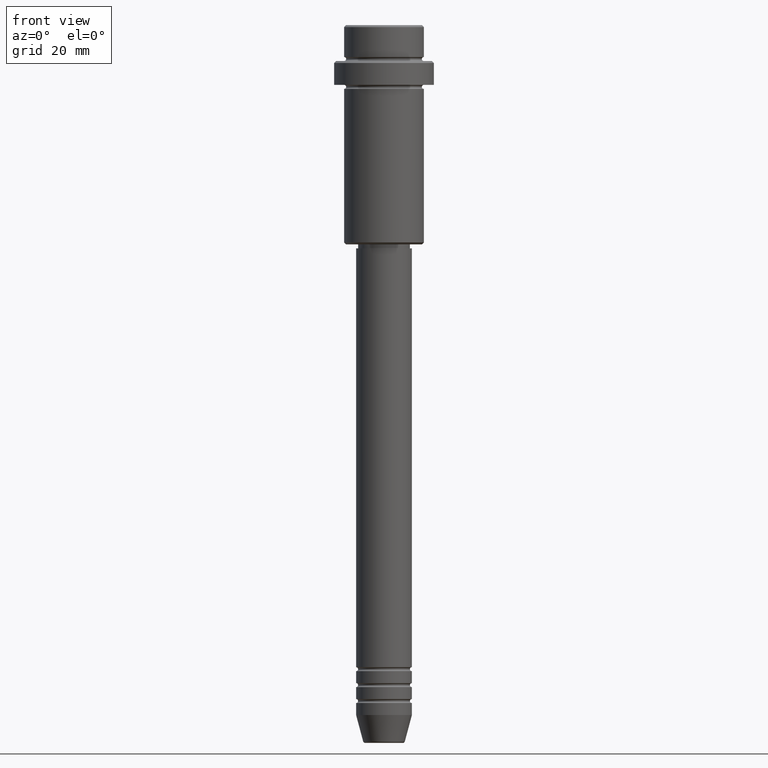
[diagram: clean part render]
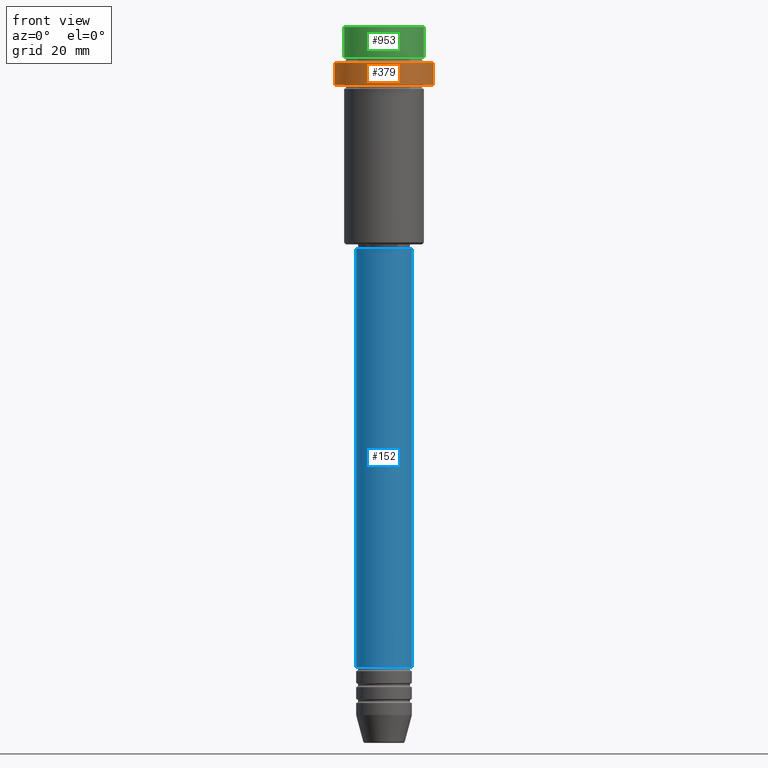
[diagram: same view with three faces highlighted in distinct colors, each labeled with its STEP entity id]
A machine part, front view with three faces highlighted in distinct colors.
Their STEP definitions:

[orange] entity #379 — the highlighted cylindrical surface (partial cylindrical patch) has radius 12.5 mm, axis along (-0, -0, 1).
#19 = ORIENTED_EDGE ( 'NONE', *, *, #631, .T. ) ;
#111 = CARTESIAN_POINT ( 'NONE',  ( 0.000000000000000000, 0.000000000000000000, -15.00000000000000000 ) ) ;
#124 = CIRCLE ( 'NONE', #1288, 12.50000000000000000 ) ;
#171 = CIRCLE ( 'NONE', #465, 12.50000000000000000 ) ;
#180 = DIRECTION ( 'NONE',  ( -0.000000000000000000, -0.000000000000000000, 1.000000000000000000 ) ) ;
#185 = VECTOR ( 'NONE', #728, 1000.000000000000000 ) ;
#215 = EDGE_CURVE ( 'NONE', #1117, #1006, #1261, .T. ) ;
#276 = CARTESIAN_POINT ( 'NONE',  ( -12.50000000000000000, 1.530808498934191521E-15, 0.000000000000000000 ) ) ;
#285 = ORIENTED_EDGE ( 'NONE', *, *, #1049, .T. ) ;
#315 = EDGE_CURVE ( 'NONE', #1117, #476, #171, .T. ) ;
#379 = ADVANCED_FACE ( 'NONE', ( #1224 ), #1134, .T. ) ;
#447 = CARTESIAN_POINT ( 'NONE',  ( 0.000000000000000000, 0.000000000000000000, 0.000000000000000000 ) ) ;
#453 = DIRECTION ( 'NONE',  ( -0.000000000000000000, -0.000000000000000000, 1.000000000000000000 ) ) ;
#465 = AXIS2_PLACEMENT_3D ( 'NONE', #111, #532, #864 ) ;
#473 = DIRECTION ( 'NONE',  ( 1.000000000000000000, 0.000000000000000000, 0.000000000000000000 ) ) ;
#476 = VERTEX_POINT ( 'NONE', #1408 ) ;
#495 = CARTESIAN_POINT ( 'NONE',  ( 12.50000000000000000, 0.000000000000000000, 0.000000000000000000 ) ) ;
#532 = DIRECTION ( 'NONE',  ( -0.000000000000000000, -0.000000000000000000, 1.000000000000000000 ) ) ;
#543 = ORIENTED_EDGE ( 'NONE', *, *, #315, .T. ) ;
#631 = EDGE_CURVE ( 'NONE', #662, #1006, #124, .T. ) ;
#642 = VECTOR ( 'NONE', #180, 1000.000000000000000 ) ;
#662 = VERTEX_POINT ( 'NONE', #999 ) ;
#672 = AXIS2_PLACEMENT_3D ( 'NONE', #447, #453, #473 ) ;
#681 = DIRECTION ( 'NONE',  ( 1.000000000000000000, 0.000000000000000000, 0.000000000000000000 ) ) ;
#728 = DIRECTION ( 'NONE',  ( -0.000000000000000000, -0.000000000000000000, 1.000000000000000000 ) ) ;
#746 = EDGE_LOOP ( 'NONE', ( #954, #543, #285, #19 ) ) ;
#864 = DIRECTION ( 'NONE',  ( 1.000000000000000000, 0.000000000000000000, 0.000000000000000000 ) ) ;
#940 = LINE ( 'NONE', #495, #185 ) ;
#954 = ORIENTED_EDGE ( 'NONE', *, *, #215, .F. ) ;
#994 = CARTESIAN_POINT ( 'NONE',  ( -12.50000000000000000, 1.530808498934191521E-15, -15.00000000000000000 ) ) ;
#999 = CARTESIAN_POINT ( 'NONE',  ( 12.50000000000000000, 0.000000000000000000, -9.500000000000005329 ) ) ;
#1006 = VERTEX_POINT ( 'NONE', #1074 ) ;
#1049 = EDGE_CURVE ( 'NONE', #476, #662, #940, .T. ) ;
#1074 = CARTESIAN_POINT ( 'NONE',  ( -12.50000000000000000, 1.530808498934191521E-15, -9.500000000000005329 ) ) ;
#1117 = VERTEX_POINT ( 'NONE', #994 ) ;
#1134 = CYLINDRICAL_SURFACE ( 'NONE', #672, 12.50000000000000000 ) ;
#1224 = FACE_OUTER_BOUND ( 'NONE', #746, .T. ) ;
#1231 = DIRECTION ( 'NONE',  ( 0.000000000000000000, 0.000000000000000000, -1.000000000000000000 ) ) ;
#1261 = LINE ( 'NONE', #276, #642 ) ;
#1288 = AXIS2_PLACEMENT_3D ( 'NONE', #1348, #1231, #681 ) ;
#1348 = CARTESIAN_POINT ( 'NONE',  ( 0.000000000000000000, 0.000000000000000000, -9.500000000000005329 ) ) ;
#1408 = CARTESIAN_POINT ( 'NONE',  ( 12.50000000000000000, 0.000000000000000000, -15.00000000000000000 ) ) ;

[blue] entity #152 — the highlighted cylindrical surface (edge-blend (fillet) strip) has radius 7 mm, axis along (-0, -0, 1).
#43 = VECTOR ( 'NONE', #807, 1000.000000000000000 ) ;
#108 = EDGE_CURVE ( 'NONE', #161, #904, #1360, .T. ) ;
#152 = ADVANCED_FACE ( 'NONE', ( #594 ), #397, .T. ) ;
#161 = VERTEX_POINT ( 'NONE', #303 ) ;
#169 = VECTOR ( 'NONE', #1187, 1000.000000000000000 ) ;
#289 = DIRECTION ( 'NONE',  ( -0.000000000000000000, -0.000000000000000000, 1.000000000000000000 ) ) ;
#290 = EDGE_CURVE ( 'NONE', #1162, #814, #743, .T. ) ;
#303 = CARTESIAN_POINT ( 'NONE',  ( -7.000000000000000000, 8.572527594031473190E-16, -160.9999999999998579 ) ) ;
#304 = DIRECTION ( 'NONE',  ( -0.000000000000000000, -0.000000000000000000, 1.000000000000000000 ) ) ;
#368 = CARTESIAN_POINT ( 'NONE',  ( -7.000000000000000000, 8.572527594031473190E-16, 0.000000000000000000 ) ) ;
#370 = AXIS2_PLACEMENT_3D ( 'NONE', #1182, #304, #1402 ) ;
#397 = CYLINDRICAL_SURFACE ( 'NONE', #555, 7.000000000000000000 ) ;
#450 = ORIENTED_EDGE ( 'NONE', *, *, #808, .T. ) ;
#548 = CARTESIAN_POINT ( 'NONE',  ( 7.000000000000000000, 0.000000000000000000, -160.9999999999998579 ) ) ;
#555 = AXIS2_PLACEMENT_3D ( 'NONE', #1047, #289, #1384 ) ;
#594 = FACE_OUTER_BOUND ( 'NONE', #1152, .T. ) ;
#624 = CIRCLE ( 'NONE', #930, 7.000000000000000000 ) ;
#726 = ORIENTED_EDGE ( 'NONE', *, *, #290, .T. ) ;
#743 = LINE ( 'NONE', #975, #169 ) ;
#771 = ORIENTED_EDGE ( 'NONE', *, *, #1064, .F. ) ;
#778 = ORIENTED_EDGE ( 'NONE', *, *, #108, .F. ) ;
#807 = DIRECTION ( 'NONE',  ( -0.000000000000000000, -0.000000000000000000, 1.000000000000000000 ) ) ;
#808 = EDGE_CURVE ( 'NONE', #161, #1162, #624, .T. ) ;
#814 = VERTEX_POINT ( 'NONE', #1390 ) ;
#904 = VERTEX_POINT ( 'NONE', #1063 ) ;
#930 = AXIS2_PLACEMENT_3D ( 'NONE', #1171, #1151, #933 ) ;
#933 = DIRECTION ( 'NONE',  ( 1.000000000000000000, 0.000000000000000000, 0.000000000000000000 ) ) ;
#975 = CARTESIAN_POINT ( 'NONE',  ( 7.000000000000000000, 0.000000000000000000, 0.000000000000000000 ) ) ;
#988 = CIRCLE ( 'NONE', #370, 7.000000000000000000 ) ;
#1047 = CARTESIAN_POINT ( 'NONE',  ( 0.000000000000000000, 0.000000000000000000, 0.000000000000000000 ) ) ;
#1063 = CARTESIAN_POINT ( 'NONE',  ( -7.000000000000000000, 8.572527594031473190E-16, -55.99999999999999289 ) ) ;
#1064 = EDGE_CURVE ( 'NONE', #904, #814, #988, .T. ) ;
#1151 = DIRECTION ( 'NONE',  ( -0.000000000000000000, -0.000000000000000000, 1.000000000000000000 ) ) ;
#1152 = EDGE_LOOP ( 'NONE', ( #778, #450, #726, #771 ) ) ;
#1162 = VERTEX_POINT ( 'NONE', #548 ) ;
#1171 = CARTESIAN_POINT ( 'NONE',  ( 0.000000000000000000, 0.000000000000000000, -160.9999999999998579 ) ) ;
#1182 = CARTESIAN_POINT ( 'NONE',  ( 0.000000000000000000, 0.000000000000000000, -55.99999999999999289 ) ) ;
#1187 = DIRECTION ( 'NONE',  ( -0.000000000000000000, -0.000000000000000000, 1.000000000000000000 ) ) ;
#1360 = LINE ( 'NONE', #368, #43 ) ;
#1384 = DIRECTION ( 'NONE',  ( 1.000000000000000000, 0.000000000000000000, 0.000000000000000000 ) ) ;
#1390 = CARTESIAN_POINT ( 'NONE',  ( 7.000000000000000000, 0.000000000000000000, -55.99999999999999289 ) ) ;
#1402 = DIRECTION ( 'NONE',  ( 1.000000000000000000, 0.000000000000000000, 0.000000000000000000 ) ) ;

[green] entity #953 — the highlighted cylindrical surface (partial cylindrical patch) has radius 10 mm, axis along (-0, -0, 1).
#3 = DIRECTION ( 'NONE',  ( 1.000000000000000000, 0.000000000000000000, 0.000000000000000000 ) ) ;
#30 = DIRECTION ( 'NONE',  ( -0.000000000000000000, -0.000000000000000000, 1.000000000000000000 ) ) ;
#52 = VERTEX_POINT ( 'NONE', #1194 ) ;
#224 = EDGE_CURVE ( 'NONE', #883, #296, #1250, .T. ) ;
#259 = AXIS2_PLACEMENT_3D ( 'NONE', #313, #1284, #3 ) ;
#296 = VERTEX_POINT ( 'NONE', #632 ) ;
#313 = CARTESIAN_POINT ( 'NONE',  ( 0.000000000000000000, 0.000000000000000000, 0.000000000000000000 ) ) ;
#358 = ORIENTED_EDGE ( 'NONE', *, *, #616, .T. ) ;
#371 = VECTOR ( 'NONE', #1366, 1000.000000000000000 ) ;
#385 = DIRECTION ( 'NONE',  ( 1.000000000000000000, 0.000000000000000000, 0.000000000000000000 ) ) ;
#431 = DIRECTION ( 'NONE',  ( 1.000000000000000000, 0.000000000000000000, 0.000000000000000000 ) ) ;
#439 = CARTESIAN_POINT ( 'NONE',  ( 0.000000000000000000, 0.000000000000000000, -7.999999999999998224 ) ) ;
#512 = FACE_OUTER_BOUND ( 'NONE', #982, .T. ) ;
#561 = ORIENTED_EDGE ( 'NONE', *, *, #224, .T. ) ;
#583 = ORIENTED_EDGE ( 'NONE', *, *, #1309, .F. ) ;
#604 = CARTESIAN_POINT ( 'NONE',  ( 0.000000000000000000, 0.000000000000000000, -0.4999999999999970024 ) ) ;
#616 = EDGE_CURVE ( 'NONE', #52, #883, #1005, .T. ) ;
#632 = CARTESIAN_POINT ( 'NONE',  ( -9.999999999999998224, 1.224646799147353059E-15, -0.4999999999999970024 ) ) ;
#648 = CYLINDRICAL_SURFACE ( 'NONE', #259, 9.999999999999998224 ) ;
#677 = CARTESIAN_POINT ( 'NONE',  ( -9.999999999999998224, 1.224646799147353059E-15, 0.000000000000000000 ) ) ;
#690 = AXIS2_PLACEMENT_3D ( 'NONE', #439, #1311, #431 ) ;
#735 = VECTOR ( 'NONE', #30, 1000.000000000000000 ) ;
#739 = VERTEX_POINT ( 'NONE', #1034 ) ;
#836 = DIRECTION ( 'NONE',  ( 0.000000000000000000, 0.000000000000000000, -1.000000000000000000 ) ) ;
#866 = ORIENTED_EDGE ( 'NONE', *, *, #1203, .T. ) ;
#883 = VERTEX_POINT ( 'NONE', #1316 ) ;
#895 = CIRCLE ( 'NONE', #690, 9.999999999999998224 ) ;
#953 = ADVANCED_FACE ( 'NONE', ( #512 ), #648, .T. ) ;
#982 = EDGE_LOOP ( 'NONE', ( #583, #866, #358, #561 ) ) ;
#1005 = LINE ( 'NONE', #1013, #735 ) ;
#1013 = CARTESIAN_POINT ( 'NONE',  ( 9.999999999999998224, 0.000000000000000000, 0.000000000000000000 ) ) ;
#1034 = CARTESIAN_POINT ( 'NONE',  ( -9.999999999999998224, 1.224646799147353059E-15, -7.999999999999998224 ) ) ;
#1036 = LINE ( 'NONE', #677, #371 ) ;
#1194 = CARTESIAN_POINT ( 'NONE',  ( 9.999999999999998224, 0.000000000000000000, -7.999999999999998224 ) ) ;
#1203 = EDGE_CURVE ( 'NONE', #739, #52, #895, .T. ) ;
#1250 = CIRCLE ( 'NONE', #1387, 9.999999999999998224 ) ;
#1284 = DIRECTION ( 'NONE',  ( -0.000000000000000000, -0.000000000000000000, 1.000000000000000000 ) ) ;
#1309 = EDGE_CURVE ( 'NONE', #739, #296, #1036, .T. ) ;
#1311 = DIRECTION ( 'NONE',  ( -0.000000000000000000, -0.000000000000000000, 1.000000000000000000 ) ) ;
#1316 = CARTESIAN_POINT ( 'NONE',  ( 9.999999999999998224, 0.000000000000000000, -0.4999999999999970024 ) ) ;
#1366 = DIRECTION ( 'NONE',  ( -0.000000000000000000, -0.000000000000000000, 1.000000000000000000 ) ) ;
#1387 = AXIS2_PLACEMENT_3D ( 'NONE', #604, #836, #385 ) ;